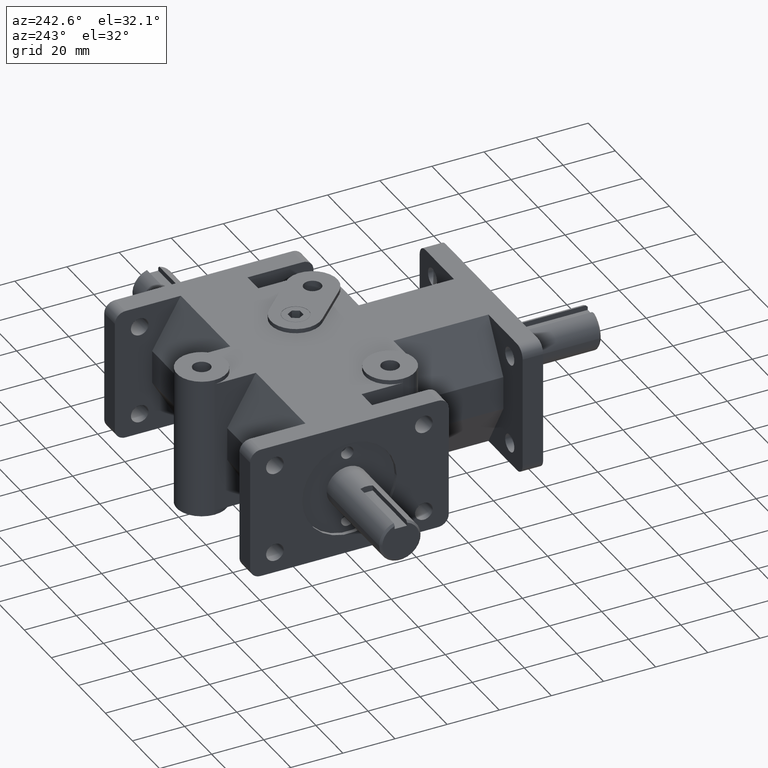
[diagram: clean part render]
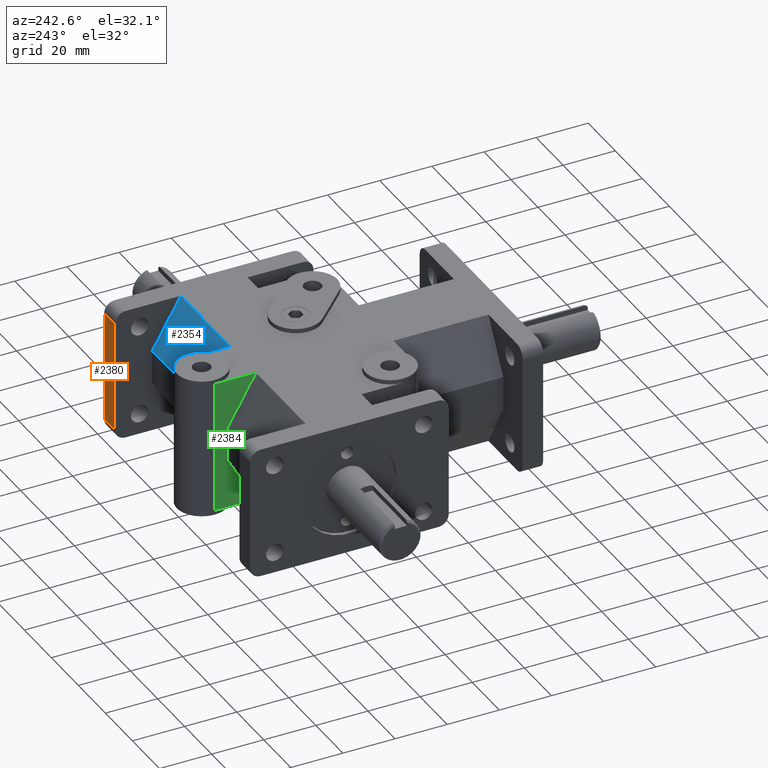
[diagram: same view with three faces highlighted in distinct colors, each labeled with its STEP entity id]
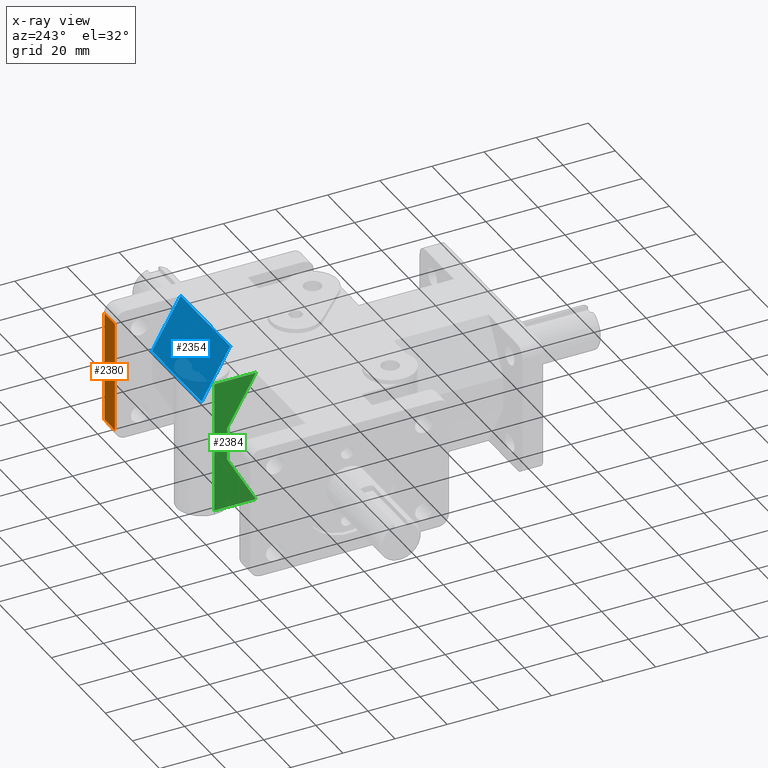
[diagram: x-ray of the same camera — body ghosted, the three highlighted faces saturated]
A machine part, auxiliary view with three faces highlighted in distinct colors.
The next image is the same camera in x-ray (body ghosted, the three faces saturated) — at least one of them is partly hidden behind the body in this view.
Their STEP definitions:

[orange] entity #2380 — the highlighted planar face has unit normal (0, 1, 0).
#134=PLANE('',#2629);
#261=FACE_OUTER_BOUND('',#425,.T.);
#425=EDGE_LOOP('',(#2112,#2113,#2114,#2115));
#474=LINE('',#3473,#696);
#475=LINE('',#3479,#697);
#508=LINE('',#3574,#730);
#655=LINE('',#4001,#877);
#696=VECTOR('',#2791,1.);
#697=VECTOR('',#2796,1.);
#730=VECTOR('',#2875,1.);
#877=VECTOR('',#3286,1.);
#1047=VERTEX_POINT('',#3466);
#1050=VERTEX_POINT('',#3471);
#1052=VERTEX_POINT('',#3476);
#1053=VERTEX_POINT('',#3478);
#1280=EDGE_CURVE('',#1050,#1047,#474,.T.);
#1282=EDGE_CURVE('',#1052,#1053,#475,.T.);
#1330=EDGE_CURVE('',#1053,#1050,#508,.T.);
#1538=EDGE_CURVE('',#1052,#1047,#655,.T.);
#2112=ORIENTED_EDGE('',*,*,#1280,.F.);
#2113=ORIENTED_EDGE('',*,*,#1330,.F.);
#2114=ORIENTED_EDGE('',*,*,#1282,.F.);
#2115=ORIENTED_EDGE('',*,*,#1538,.T.);
#2380=ADVANCED_FACE('',(#261),#134,.T.);
#2629=AXIS2_PLACEMENT_3D('',#4002,#3287,#3288);
#2791=DIRECTION('',(1.,0.,0.));
#2796=DIRECTION('',(-1.,0.,0.));
#2875=DIRECTION('',(0.,0.,-1.));
#3286=DIRECTION('',(0.,0.,-1.));
#3287=DIRECTION('center_axis',(0.,1.,0.));
#3288=DIRECTION('ref_axis',(0.,0.,-1.));
#3466=CARTESIAN_POINT('',(2.125,4.75,-0.84));
#3471=CARTESIAN_POINT('',(1.815,4.75,-0.84));
#3473=CARTESIAN_POINT('',(1.0625,4.75,-0.84));
#3476=CARTESIAN_POINT('',(2.125,4.75,0.84));
#3478=CARTESIAN_POINT('',(1.815,4.75,0.84));
#3479=CARTESIAN_POINT('',(1.0625,4.75,0.84));
#3574=CARTESIAN_POINT('',(1.815,4.75,0.));
#4001=CARTESIAN_POINT('',(2.125,4.75,0.));
#4002=CARTESIAN_POINT('Origin',(2.125,4.75,0.));

[blue] entity #2354 — the highlighted planar face has unit normal (0, 0.866, 0.5).
#113=PLANE('',#2590);
#235=FACE_OUTER_BOUND('',#387,.T.);
#387=EDGE_LOOP('',(#1995,#1996,#1997,#1998));
#506=LINE('',#3572,#728);
#517=LINE('',#3600,#739);
#624=LINE('',#3909,#846);
#625=LINE('',#3910,#847);
#728=VECTOR('',#2873,1.);
#739=VECTOR('',#2896,1.);
#846=VECTOR('',#3179,1.);
#847=VECTOR('',#3180,1.);
#1091=VERTEX_POINT('',#3569);
#1092=VERTEX_POINT('',#3571);
#1103=VERTEX_POINT('',#3599);
#1199=VERTEX_POINT('',#3908);
#1328=EDGE_CURVE('',#1092,#1091,#506,.F.);
#1344=EDGE_CURVE('',#1103,#1092,#517,.T.);
#1494=EDGE_CURVE('',#1199,#1103,#624,.F.);
#1495=EDGE_CURVE('',#1091,#1199,#625,.T.);
#1995=ORIENTED_EDGE('',*,*,#1494,.T.);
#1996=ORIENTED_EDGE('',*,*,#1344,.T.);
#1997=ORIENTED_EDGE('',*,*,#1328,.T.);
#1998=ORIENTED_EDGE('',*,*,#1495,.T.);
#2354=ADVANCED_FACE('',(#235),#113,.T.);
#2590=AXIS2_PLACEMENT_3D('',#3907,#3177,#3178);
#2873=DIRECTION('',(0.,-0.500000258168844,0.866025254730536));
#2896=DIRECTION('',(1.,0.,0.));
#3177=DIRECTION('center_axis',(0.,0.866025254730536,0.500000258168844));
#3178=DIRECTION('ref_axis',(0.,0.500000258168844,-0.866025254730536));
#3179=DIRECTION('',(0.,0.500000258168844,-0.866025254730536));
#3180=DIRECTION('',(-1.,0.,0.));
#3569=CARTESIAN_POINT('',(1.815,4.1875,0.25));
#3571=CARTESIAN_POINT('',(1.815,3.754487,1.));
#3572=CARTESIAN_POINT('',(1.815,4.20368592897826,0.221965167942549));
#3599=CARTESIAN_POINT('',(0.375,3.754487,1.));
#3600=CARTESIAN_POINT('',(0.9075,3.754487,1.));
#3907=CARTESIAN_POINT('Origin',(0.9075,3.9709935,0.625));
#3908=CARTESIAN_POINT('',(0.375,4.1875,0.25));
#3909=CARTESIAN_POINT('',(0.375,4.13337335636825,0.343750032271114));
#3910=CARTESIAN_POINT('',(0.9075,4.1875,0.25));

[green] entity #2384 — the highlighted planar face has unit normal (-1, 0, 0).
#137=PLANE('',#2633);
#265=FACE_OUTER_BOUND('',#429,.T.);
#429=EDGE_LOOP('',(#2136,#2137,#2138,#2139,#2140,#2141));
#519=LINE('',#3606,#741);
#538=LINE('',#3651,#760);
#626=LINE('',#3913,#848);
#630=LINE('',#3921,#852);
#659=LINE('',#4009,#881);
#661=LINE('',#4012,#883);
#741=VECTOR('',#2900,1.);
#760=VECTOR('',#2935,1.);
#848=VECTOR('',#3183,1.);
#852=VECTOR('',#3189,1.);
#881=VECTOR('',#3298,1.);
#883=VECTOR('',#3302,1.);
#1105=VERTEX_POINT('',#3603);
#1106=VERTEX_POINT('',#3605);
#1123=VERTEX_POINT('',#3648);
#1124=VERTEX_POINT('',#3650);
#1200=VERTEX_POINT('',#3912);
#1203=VERTEX_POINT('',#3920);
#1347=EDGE_CURVE('',#1106,#1105,#519,.T.);
#1372=EDGE_CURVE('',#1124,#1123,#538,.T.);
#1496=EDGE_CURVE('',#1200,#1123,#626,.F.);
#1500=EDGE_CURVE('',#1106,#1203,#630,.F.);
#1542=EDGE_CURVE('',#1105,#1124,#659,.T.);
#1544=EDGE_CURVE('',#1203,#1200,#661,.T.);
#2136=ORIENTED_EDGE('',*,*,#1372,.T.);
#2137=ORIENTED_EDGE('',*,*,#1496,.F.);
#2138=ORIENTED_EDGE('',*,*,#1544,.F.);
#2139=ORIENTED_EDGE('',*,*,#1500,.F.);
#2140=ORIENTED_EDGE('',*,*,#1347,.T.);
#2141=ORIENTED_EDGE('',*,*,#1542,.T.);
#2384=ADVANCED_FACE('',(#265),#137,.T.);
#2633=AXIS2_PLACEMENT_3D('',#4011,#3300,#3301);
#2900=DIRECTION('',(0.,1.,0.));
#2935=DIRECTION('',(0.,-1.,0.));
#3183=DIRECTION('',(0.,0.500000258168844,0.866025254730536));
#3189=DIRECTION('',(0.,-0.500000258168844,0.866025254730536));
#3298=DIRECTION('',(0.,0.,-1.));
#3300=DIRECTION('center_axis',(-1.,0.,0.));
#3301=DIRECTION('ref_axis',(0.,1.,0.));
#3302=DIRECTION('',(0.,0.,-1.));
#3603=CARTESIAN_POINT('',(-0.375,4.38,1.));
#3605=CARTESIAN_POINT('',(-0.375,3.754487,1.));
#3606=CARTESIAN_POINT('',(-0.375,4.1875,1.));
#3648=CARTESIAN_POINT('',(-0.375,3.754487,-1.));
#3650=CARTESIAN_POINT('',(-0.375,4.38,-1.));
#3651=CARTESIAN_POINT('',(-0.375,3.40371389024368,-1.));
#3912=CARTESIAN_POINT('',(-0.375,4.1875,-0.25));
#3913=CARTESIAN_POINT('',(-0.375,4.15743588121701,-0.302072545367561));
#3920=CARTESIAN_POINT('',(-0.375,4.1875,0.25));
#3921=CARTESIAN_POINT('',(-0.375,4.15743588121701,0.302072545367561));
#4009=CARTESIAN_POINT('',(-0.375,4.38,0.));
#4011=CARTESIAN_POINT('Origin',(-0.375,4.38,0.));
#4012=CARTESIAN_POINT('',(-0.375,4.1875,0.));